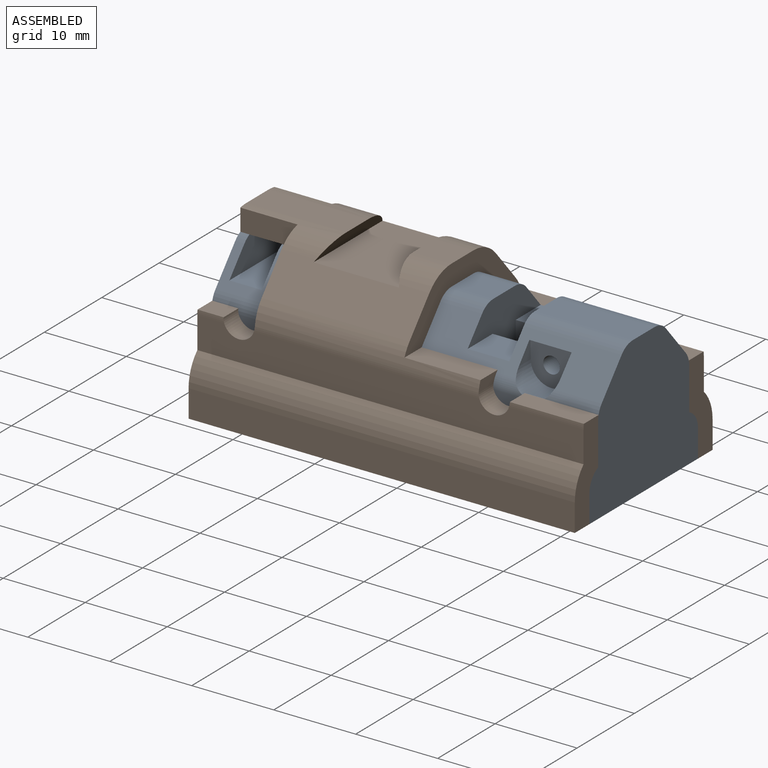
[diagram: assembled view]
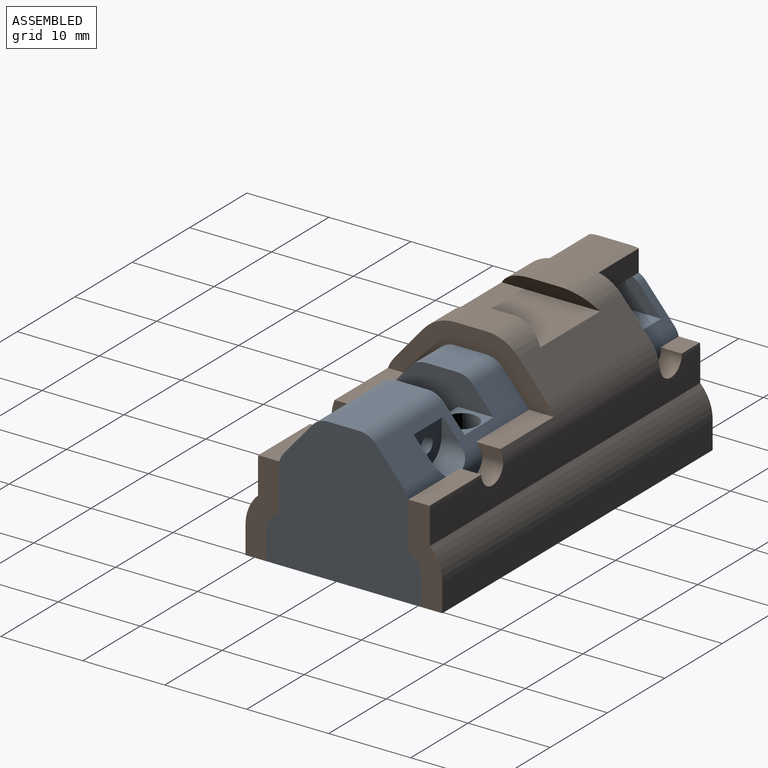
[diagram: assembled view, second angle]
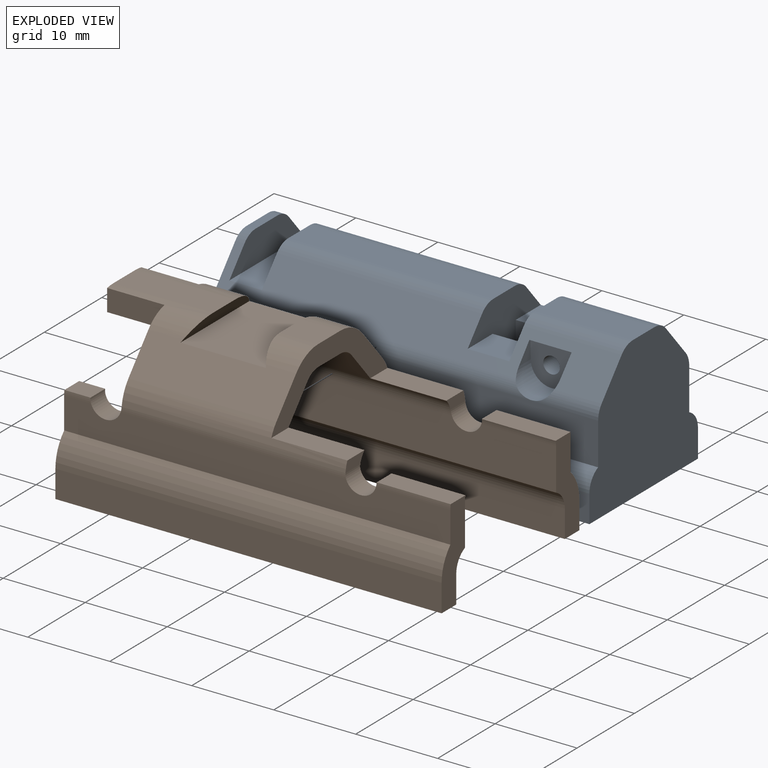
[diagram: exploded view]
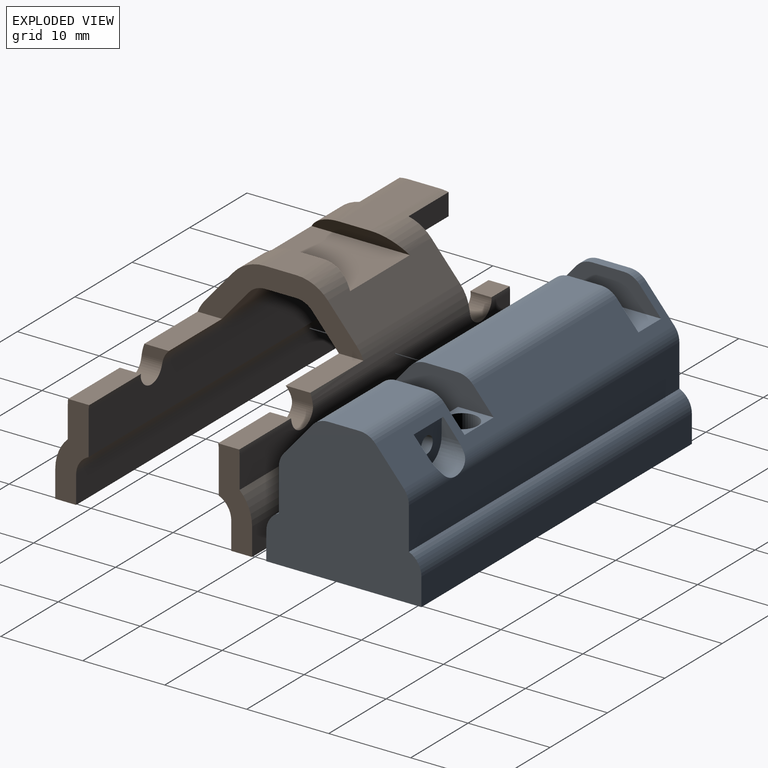
[diagram: exploded view, second angle]
ASSEMBLY  parts=2 mates=3
PART A: 43 faces, bbox 47.1x18.9x17.4 mm
  f0: plane 5.08x4.36mm, normal (0,0,1), area 10.7mm2, adj f11,f19,f20,f26,f42
  f1: cylinder r=1.02mm len=8.89mm, axis (0,-1,0), area 56.8mm2, adj f25,f40
  f2: plane 11.94x3.85mm, normal (0,0,1), area 45.9mm2, adj f3,f13,f20,f28
  f3: cylinder r=2.54mm len=11.94mm, axis (1,0,0), area 26.1mm2, adj f2,f11,f13,f20
  f4: plane 25.02x3.85mm, normal (0,0,1), area 96.2mm2, adj f5,f17,f19,f29
  f5: cylinder r=2.54mm len=25.02mm, axis (1,0,0), area 54.7mm2, adj f4,f11,f17,f19
  f6: plane 18.92x17.4mm, normal (-1,0,0), area 263.6mm2, adj f7,f8,f9,f10,f11,f12,f14,f15
  f7: plane 47.12x3.36mm, normal (0,1,0), area 158.2mm2, adj f6,f8,f13,f14
  f8: cylinder r=2.54mm len=47.12mm, axis (1,0,0), area 138.7mm2, adj f6,f7,f9,f13
  f9: plane 47.12x5.13mm, normal (0,1,0), area 241.8mm2, adj f6,f8,f10,f13
  f10: cylinder r=2.54mm len=47.12mm, axis (1,0,0), area 79.1mm2, adj f6,f9,f11,f13,f23
  f11: plane 47.13x4.06mm, normal (0,0.76,0.65), area 194.5mm2, adj f0,f3,f5,f6,f10,f12,f13,f16
  f12: cylinder r=2.54mm len=1.93mm, axis (1,0,0), area 2.4mm2, adj f6,f11,f15,f16
  f13: plane 18.92x17.4mm, normal (1,0,0), area 263.6mm2, adj f2,f3,f7,f8,f9,f10,f11,f14
  f14: plane 47.12x18.92mm, normal (0,0,-1), area 859.8mm2, adj f6,f7,f13,f19,f20,f26,f30,f41
  f15: plane 3.85x1.12mm, normal (0,0,1), area 4.3mm2, adj f6,f12,f16,f35
  f16: plane 12.99x3.96mm, normal (1,0,0), area 37.6mm2, adj f11,f12,f15,f18,f34,f35
  f17: plane 12.99x3.96mm, normal (-1,0,0), area 37.6mm2, adj f4,f5,f11,f18,f29,f34
  f18: plane 12.99x3.96mm, normal (0,0,1), area 51.5mm2, adj f11,f16,f17,f34
  f19: plane 17.4x12.73mm, normal (1,0,0), area 90.2mm2, adj f0,f4,f5,f11,f14,f26,f27,f29
  f20: plane 17.4x12.73mm, normal (-1,0,0), area 90.2mm2, adj f0,f2,f3,f11,f14,f26,f27,f28
  f21: plane 5.15x0.18mm, normal (0,0,-1), area 0.9mm2, adj f11,f22,f24,f25
  f22: plane 2.2x2.08mm, normal (1,0,0.02), area 2.5mm2, adj f11,f21,f23,f25
  f23: cylinder r=2.54mm len=5.08mm, axis (0,-1,0), area 24.8mm2, adj f10,f11,f22,f24,f25
  f24: plane 2.2x2.08mm, normal (-1,0,0.02), area 2.5mm2, adj f11,f21,f23,f25
  f25: plane 5.15x4.7mm, normal (0,1,0), area 17.9mm2, adj f1,f21,f22,f23,f24
  f26: plane 13.59x5.08mm, normal (0,-1,0), area 69mm2, adj f0,f14,f19,f20
  f27: plane 5.08x4.36mm, normal (0,0,1), area 22.1mm2, adj f19,f20,f34,f41
  f28: cylinder r=2.54mm len=11.94mm, axis (1,0,0), area 26.1mm2, adj f2,f13,f20,f34
  f29: cylinder r=2.54mm len=25.02mm, axis (1,0,0), area 54.7mm2, adj f4,f17,f19,f34
  f30: plane 47.12x3.36mm, normal (0,-1,0), area 158.2mm2, adj f6,f13,f14,f31
  f31: cylinder r=2.54mm len=47.12mm, axis (1,0,0), area 138.7mm2, adj f6,f13,f30,f32
  f32: plane 47.12x5.13mm, normal (0,-1,0), area 241.8mm2, adj f6,f13,f31,f33
  f33: cylinder r=2.54mm len=47.12mm, axis (1,0,0), area 79.1mm2, adj f6,f13,f32,f34,f38
  f34: plane 47.13x4.06mm, normal (0,-0.76,0.65), area 194.5mm2, adj f6,f13,f16,f17,f18,f19,f20,f27
  f35: cylinder r=2.54mm len=1.93mm, axis (1,0,0), area 2.4mm2, adj f6,f15,f16,f34
  f36: plane 5.15x0.18mm, normal (0,0,-1), area 0.9mm2, adj f34,f37,f39,f40
  f37: plane 2.2x2.08mm, normal (1,0,0.02), area 2.5mm2, adj f34,f36,f38,f40
  f38: cylinder r=2.54mm len=5.08mm, axis (0,1,0), area 24.8mm2, adj f33,f34,f37,f39,f40
  f39: plane 2.2x2.08mm, normal (-1,0,0.02), area 2.5mm2, adj f34,f36,f38,f40
  f40: plane 5.15x4.7mm, normal (0,-1,0), area 17.9mm2, adj f1,f36,f37,f38,f39
  f41: plane 13.59x5.08mm, normal (0,1,0), area 69mm2, adj f14,f19,f20,f27
  f42: cylinder r=1.91mm len=13.59mm, axis (0,0,-1), area 162.7mm2, adj f0,f14
PART B: 64 faces, bbox 47.1x24x19.9 mm
  f0: plane 12.18x3.85mm, normal (0,0,1), area 46.8mm2, adj f3,f6,f34,f38
  f1: plane 18.03x4.04mm, normal (0,0.76,0.65), area 92.6mm2, adj f2,f3,f9,f24,f29,f33,f34,f35
  f2: cylinder r=5.08mm len=4.68mm, axis (1,0,0), area 19mm2, adj f1,f11,f24,f33
  f3: cylinder r=5.08mm len=12.18mm, axis (1,0,0), area 28.7mm2, adj f0,f1,f6,f29,f31,f34
  f4: cylinder r=5.08mm len=3.28mm, axis (-1,0,0), area 2mm2, adj f7,f18,f30,f32
  f5: cylinder r=2.54mm len=3.28mm, axis (-1,0,0), area 2mm2, adj f7,f21,f30,f32
  f6: plane 5.97x2.77mm, normal (-1,0,0), area 15.2mm2, adj f0,f3,f13,f15,f31,f38,f47,f62
  f7: plane 11.43x4.14mm, normal (-1,0,0), area 30.3mm2, adj f4,f5,f16,f17,f18,f19,f20,f21
  f8: plane 11.43x4.14mm, normal (1,0,0), area 30.3mm2, adj f12,f16,f17,f18,f19,f20,f21,f22
  f9: cylinder r=5.08mm len=27.51mm, axis (-1,0,0), area 83mm2, adj f1,f18,f24,f25,f26,f28,f29,f32
  f10: cylinder r=2.54mm len=27.51mm, axis (-1,0,0), area 49.3mm2, adj f14,f21,f26,f28,f29,f32
  f11: plane 4.68x3.85mm, normal (0,0,1), area 18mm2, adj f2,f24,f33,f37
  f12: cylinder r=5.08mm len=9.12mm, axis (-1,0,0), area 5.6mm2, adj f8,f18,f26,f27
  f13: plane 25.02x3.85mm, normal (0,0,-1), area 96.2mm2, adj f6,f15,f24,f47
  f14: plane 27.31x4.04mm, normal (0,-0.76,-0.65), area 98.9mm2, adj f10,f15,f24,f25,f28,f29
  f15: cylinder r=2.54mm len=25.02mm, axis (1,0,0), area 47.1mm2, adj f6,f13,f14,f24,f29,f31
  f16: plane 47.12x2.54mm, normal (0,0,-1), area 119.7mm2, adj f7,f8,f17,f20
  f17: plane 47.12x3.36mm, normal (0,1,0), area 158.2mm2, adj f7,f8,f16,f19
  f18: plane 47.12x3.83mm, normal (0,1,0), area 173.7mm2, adj f4,f7,f8,f9,f12,f19,f26,f32
  f19: cylinder r=5.08mm len=47.12mm, axis (1,0,0), area 190.4mm2, adj f7,f8,f17,f18
  f20: plane 47.12x3.36mm, normal (0,-1,0), area 158.2mm2, adj f7,f8,f16,f22
  f21: plane 47.12x5.13mm, normal (0,-1,0), area 235mm2, adj f5,f7,f8,f10,f22,f23,f26,f32
  f22: cylinder r=2.54mm len=47.12mm, axis (1,0,0), area 138.7mm2, adj f7,f8,f20,f21
  f23: cylinder r=2.54mm len=9.12mm, axis (-1,0,0), area 5.6mm2, adj f8,f21,f26,f27
  f24: plane 20.23x7.24mm, normal (1,0,0), area 57.2mm2, adj f1,f2,f9,f11,f13,f14,f15,f25
  f25: plane 9.27x2.99mm, normal (0,0,1), area 27.7mm2, adj f9,f14,f24,f28
  f26: cylinder r=1.91mm len=3.81mm, axis (0,-1,0), area 15.2mm2, adj f9,f10,f12,f18,f21,f23,f27,f28
  f27: plane 9.02x2.58mm, normal (0,0,1), area 23.2mm2, adj f8,f12,f23,f26
  f28: plane 3.31x1.27mm, normal (1,0,0), area 3.5mm2, adj f9,f10,f14,f25,f26
  f29: plane 8.4x7.46mm, normal (-1,0,0), area 24.4mm2, adj f1,f3,f9,f10,f14,f15,f31,f32
  f30: plane 3.18x2.58mm, normal (0,0,1), area 8.2mm2, adj f4,f5,f7,f32
  f31: plane 6.99x2.66mm, normal (0,1,0), area 18.6mm2, adj f3,f6,f15,f29
  f32: cylinder r=1.91mm len=3.81mm, axis (0,-1,0), area 15.2mm2, adj f4,f5,f9,f10,f18,f21,f29,f30
  f33: plane 12x2.03mm, normal (-0.87,0,-0.48), area 22.1mm2, adj f1,f2,f11,f35,f36,f37
  f34: plane 12x2.03mm, normal (0.87,0,-0.48), area 22.1mm2, adj f0,f1,f3,f35,f36,f38
  f35: plane 12x10.41mm, normal (0,0,1), area 125mm2, adj f1,f33,f34,f36
  f36: plane 18.03x4.04mm, normal (0,-0.76,0.65), area 92.6mm2, adj f24,f33,f34,f35,f37,f38,f43,f60
  f37: cylinder r=5.08mm len=4.68mm, axis (1,0,0), area 19mm2, adj f11,f24,f33,f36
  f38: cylinder r=5.08mm len=12.18mm, axis (1,0,0), area 28.7mm2, adj f0,f6,f34,f36,f60,f62
  f39: cylinder r=5.08mm len=3.28mm, axis (-1,0,0), area 2mm2, adj f41,f50,f61,f63
  f40: cylinder r=2.54mm len=3.28mm, axis (-1,0,0), area 2mm2, adj f41,f53,f61,f63
  f41: plane 11.43x4.14mm, normal (-1,0,0), area 30.3mm2, adj f39,f40,f48,f49,f50,f51,f52,f53
  f42: plane 11.43x4.14mm, normal (1,0,0), area 30.3mm2, adj f45,f48,f49,f50,f51,f52,f53,f54
  f43: cylinder r=5.08mm len=27.51mm, axis (-1,0,0), area 83mm2, adj f24,f36,f50,f56,f57,f59,f60,f63
  f44: cylinder r=2.54mm len=27.51mm, axis (-1,0,0), area 49.3mm2, adj f46,f53,f57,f59,f60,f63
  f45: cylinder r=5.08mm len=9.12mm, axis (-1,0,0), area 5.6mm2, adj f42,f50,f57,f58
  f46: plane 27.31x4.04mm, normal (0,0.76,-0.65), area 98.9mm2, adj f24,f44,f47,f56,f59,f60
  f47: cylinder r=2.54mm len=25.02mm, axis (1,0,0), area 47.1mm2, adj f6,f13,f24,f46,f60,f62
  f48: plane 47.12x2.54mm, normal (0,0,-1), area 119.7mm2, adj f41,f42,f49,f52
  f49: plane 47.12x3.36mm, normal (0,-1,0), area 158.2mm2, adj f41,f42,f48,f51
  f50: plane 47.12x3.83mm, normal (0,-1,0), area 173.7mm2, adj f39,f41,f42,f43,f45,f51,f57,f63
  f51: cylinder r=5.08mm len=47.12mm, axis (1,0,0), area 190.4mm2, adj f41,f42,f49,f50
  f52: plane 47.12x3.36mm, normal (0,1,0), area 158.2mm2, adj f41,f42,f48,f54
  f53: plane 47.12x5.13mm, normal (0,1,0), area 235mm2, adj f40,f41,f42,f44,f54,f55,f57,f63
  f54: cylinder r=2.54mm len=47.12mm, axis (1,0,0), area 138.7mm2, adj f41,f42,f52,f53
  f55: cylinder r=2.54mm len=9.12mm, axis (-1,0,0), area 5.6mm2, adj f42,f53,f57,f58
  f56: plane 9.27x2.99mm, normal (0,0,1), area 27.7mm2, adj f24,f43,f46,f59
  f57: cylinder r=1.91mm len=3.81mm, axis (0,1,0), area 15.2mm2, adj f43,f44,f45,f50,f53,f55,f58,f59
  f58: plane 9.02x2.58mm, normal (0,0,1), area 23.2mm2, adj f42,f45,f55,f57
  f59: plane 3.31x1.27mm, normal (1,0,0), area 3.5mm2, adj f43,f44,f46,f56,f57
  f60: plane 8.4x7.46mm, normal (-1,0,0), area 24.4mm2, adj f36,f38,f43,f44,f46,f47,f62,f63
  f61: plane 3.18x2.58mm, normal (0,0,1), area 8.2mm2, adj f39,f40,f41,f63
  f62: plane 6.99x2.66mm, normal (0,-1,0), area 18.6mm2, adj f6,f38,f47,f60
  f63: cylinder r=1.91mm len=3.81mm, axis (0,1,0), area 15.2mm2, adj f39,f40,f43,f44,f50,f53,f60,f61
PLACE A t=(31.7,22.04,17.31)mm fixed
PLACE B t=(31.7,22.04,17.31)mm
MATE planar A.f32 <-> B.f53  axis (0,-1,0) through (8.14,14.1,25.56)mm
MATE planar A.f13 <-> B.f8  axis (1,0,0) through (31.7,22.04,24.92)mm
MATE planar A.f4 <-> B.f13  axis (0,0,1) through (2.17,22.04,34.7)mm
